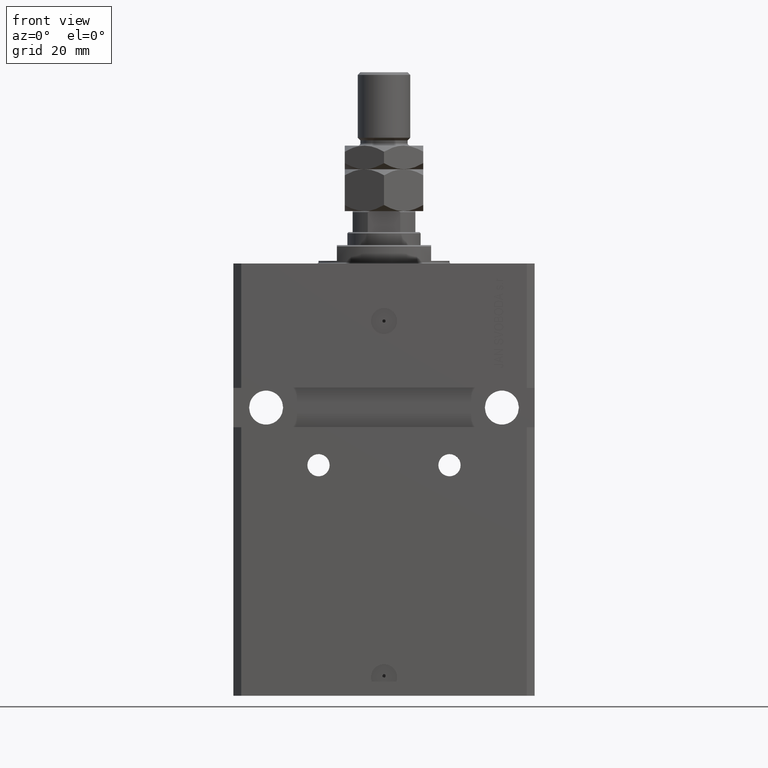
[diagram: clean part render]
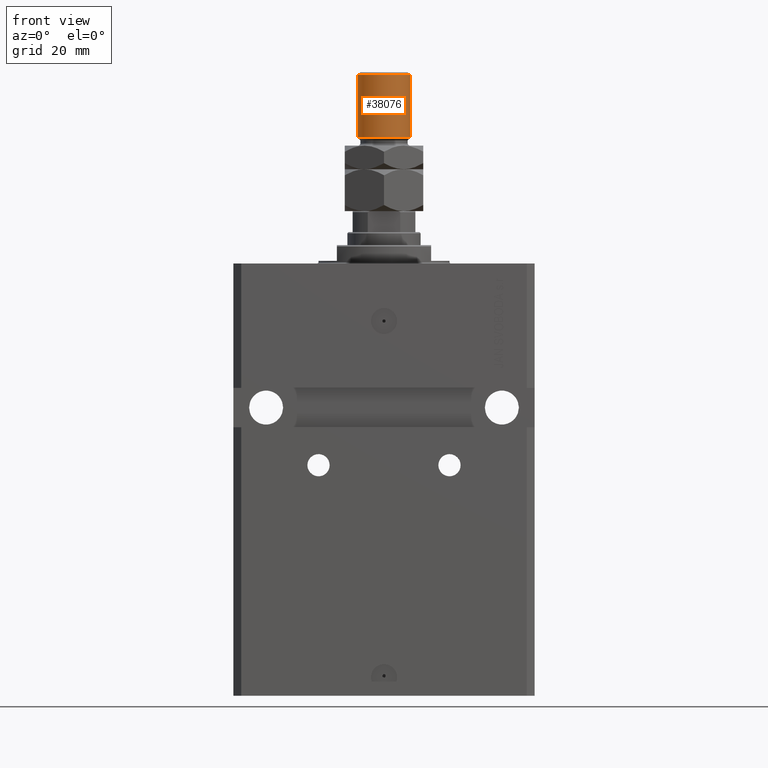
[diagram: same view with one face highlighted and labeled with its STEP entity id]
A machine part, front view. The second image highlights one B-rep face of the part: STEP entity #38076.
In plain terms, the highlighted cylindrical surface (edge-blend (fillet) strip) has radius 10 mm, axis along (-0, -0, -1).
Its self-contained STEP definition (entity closure, byte-faithful):
#1340 = DIRECTION ( 'NONE',  ( 1.000000000000000000, 0.000000000000000000, 0.000000000000000000 ) ) ;
#4084 = AXIS2_PLACEMENT_3D ( 'NONE', #23953, #31709, #1340 ) ;
#4133 = CARTESIAN_POINT ( 'NONE',  ( -10.00000000000000000, 0.000000000000000000, 28.00000000000002487 ) ) ;
#4226 = DIRECTION ( 'NONE',  ( -1.000000000000000000, 0.000000000000000000, 0.000000000000000000 ) ) ;
#5653 = EDGE_CURVE ( 'NONE', #21680, #46004, #46055, .T. ) ;
#7157 = CYLINDRICAL_SURFACE ( 'NONE', #14759, 10.00000000000000000 ) ;
#7804 = EDGE_CURVE ( 'NONE', #23662, #46004, #20694, .T. ) ;
#8961 = CARTESIAN_POINT ( 'NONE',  ( 10.00000000000000000, 1.224646799147353059E-15, 52.00000000000004974 ) ) ;
#11536 = CARTESIAN_POINT ( 'NONE',  ( 0.000000000000000000, 0.000000000000000000, 53.00000000000000711 ) ) ;
#11805 = DIRECTION ( 'NONE',  ( -0.000000000000000000, -0.000000000000000000, -1.000000000000000000 ) ) ;
#12767 = DIRECTION ( 'NONE',  ( -0.000000000000000000, -0.000000000000000000, -1.000000000000000000 ) ) ;
#13402 = CIRCLE ( 'NONE', #4084, 10.00000000000000000 ) ;
#14759 = AXIS2_PLACEMENT_3D ( 'NONE', #11536, #44570, #4226 ) ;
#15632 = ORIENTED_EDGE ( 'NONE', *, *, #5653, .F. ) ;
#16298 = EDGE_CURVE ( 'NONE', #21680, #33825, #13402, .T. ) ;
#16571 = CARTESIAN_POINT ( 'NONE',  ( 0.000000000000000000, 0.000000000000000000, 28.00000000000002487 ) ) ;
#19362 = EDGE_LOOP ( 'NONE', ( #15632, #44340, #30890, #32554 ) ) ;
#20694 = CIRCLE ( 'NONE', #41620, 10.00000000000000000 ) ;
#21680 = VERTEX_POINT ( 'NONE', #8961 ) ;
#21844 = VECTOR ( 'NONE', #11805, 1000.000000000000000 ) ;
#22515 = CARTESIAN_POINT ( 'NONE',  ( -10.00000000000000000, 0.000000000000000000, 53.00000000000000711 ) ) ;
#23662 = VERTEX_POINT ( 'NONE', #4133 ) ;
#23953 = CARTESIAN_POINT ( 'NONE',  ( 0.000000000000000000, 0.000000000000000000, 52.00000000000004974 ) ) ;
#27098 = LINE ( 'NONE', #22515, #21844 ) ;
#30404 = CARTESIAN_POINT ( 'NONE',  ( 10.00000000000000000, 1.224646799147353059E-15, 28.00000000000002487 ) ) ;
#30890 = ORIENTED_EDGE ( 'NONE', *, *, #41523, .T. ) ;
#31391 = DIRECTION ( 'NONE',  ( 1.000000000000000000, 0.000000000000000000, 0.000000000000000000 ) ) ;
#31463 = VECTOR ( 'NONE', #12767, 1000.000000000000000 ) ;
#31709 = DIRECTION ( 'NONE',  ( 0.000000000000000000, 0.000000000000000000, -1.000000000000000000 ) ) ;
#32554 = ORIENTED_EDGE ( 'NONE', *, *, #7804, .T. ) ;
#32567 = CARTESIAN_POINT ( 'NONE',  ( -10.00000000000000000, 0.000000000000000000, 52.00000000000004974 ) ) ;
#33825 = VERTEX_POINT ( 'NONE', #32567 ) ;
#34176 = CARTESIAN_POINT ( 'NONE',  ( 10.00000000000000000, 1.224646799147353059E-15, 53.00000000000000711 ) ) ;
#37065 = DIRECTION ( 'NONE',  ( -0.000000000000000000, -0.000000000000000000, 1.000000000000000000 ) ) ;
#38076 = ADVANCED_FACE ( 'NONE', ( #47726 ), #7157, .T. ) ;
#41523 = EDGE_CURVE ( 'NONE', #33825, #23662, #27098, .T. ) ;
#41620 = AXIS2_PLACEMENT_3D ( 'NONE', #16571, #37065, #31391 ) ;
#44340 = ORIENTED_EDGE ( 'NONE', *, *, #16298, .T. ) ;
#44570 = DIRECTION ( 'NONE',  ( -0.000000000000000000, -0.000000000000000000, -1.000000000000000000 ) ) ;
#46004 = VERTEX_POINT ( 'NONE', #30404 ) ;
#46055 = LINE ( 'NONE', #34176, #31463 ) ;
#47726 = FACE_OUTER_BOUND ( 'NONE', #19362, .T. ) ;